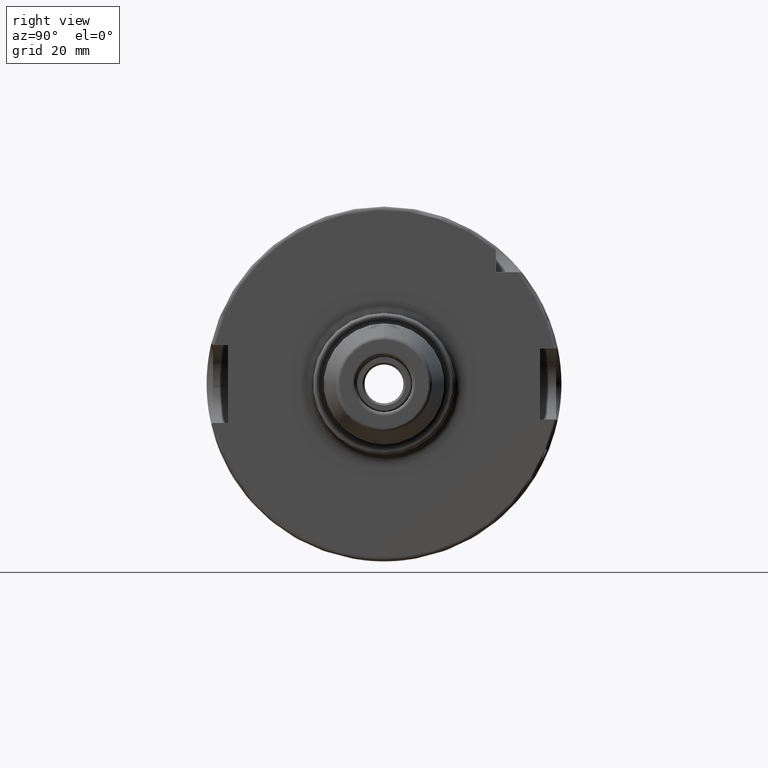
[diagram: clean part render]
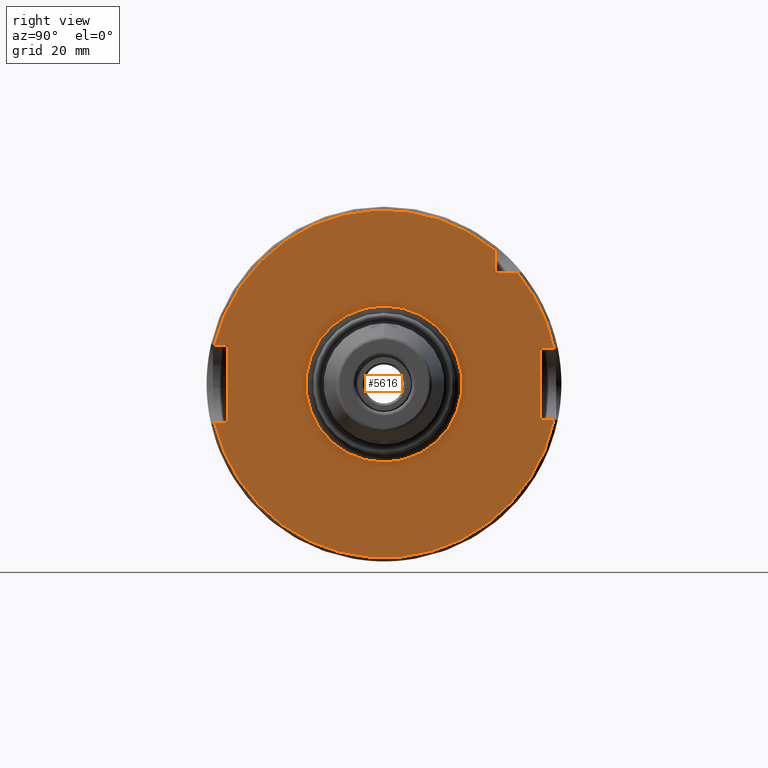
[diagram: same view with one face highlighted and labeled with its STEP entity id]
A machine part, right view. The second image highlights one B-rep face of the part: STEP entity #5616.
In plain terms, the highlighted planar face has unit normal (1, 0, 0).
Its self-contained STEP definition (entity closure, byte-faithful):
#1624=DIRECTION('',(0.E0,0.E0,1.E0));
#1625=VECTOR('',#1624,6.033318531672E0);
#1626=CARTESIAN_POINT('',(2.9E1,3.15E1,3.15E1));
#1627=LINE('',#1626,#1625);
#1749=DIRECTION('',(0.E0,1.E0,0.E0));
#1750=VECTOR('',#1749,3.968739820847E0);
#1751=CARTESIAN_POINT('',(2.9E1,4.4E1,1.E1));
#1752=LINE('',#1751,#1750);
#1927=DIRECTION('',(0.E0,0.E0,-1.E0));
#1928=VECTOR('',#1927,2.2E1);
#1929=CARTESIAN_POINT('',(2.9E1,-4.4E1,1.1E1));
#1930=LINE('',#1929,#1928);
#1944=CARTESIAN_POINT('',(2.9E1,0.E0,0.E0));
#1945=DIRECTION('',(-1.E0,0.E0,0.E0));
#1946=DIRECTION('',(0.E0,9.789538738948E-1,-2.040816326531E-1));
#1947=AXIS2_PLACEMENT_3D('',#1944,#1945,#1946);
#1949=DIRECTION('',(0.E0,-1.E0,0.E0));
#1950=VECTOR('',#1949,3.749345545252E0);
#1951=CARTESIAN_POINT('',(2.9E1,-4.4E1,1.1E1));
#1952=LINE('',#1951,#1950);
#1953=CARTESIAN_POINT('',(2.9E1,0.E0,0.E0));
#1954=DIRECTION('',(-1.E0,0.E0,0.E0));
#1955=DIRECTION('',(0.E0,-9.744764396990E-1,2.244897959184E-1));
#1956=AXIS2_PLACEMENT_3D('',#1953,#1954,#1955);
#1958=DIRECTION('',(0.E0,1.E0,0.E0));
#1959=VECTOR('',#1958,6.033318531672E0);
#1960=CARTESIAN_POINT('',(2.9E1,3.15E1,3.15E1));
#1961=LINE('',#1960,#1959);
#1962=CARTESIAN_POINT('',(2.9E1,0.E0,0.E0));
#1963=DIRECTION('',(-1.E0,0.E0,0.E0));
#1964=DIRECTION('',(0.E0,7.659860924831E-1,6.428571428571E-1));
#1965=AXIS2_PLACEMENT_3D('',#1962,#1963,#1964);
#1967=DIRECTION('',(0.E0,1.E0,0.E0));
#1968=VECTOR('',#1967,3.968739820847E0);
#1969=CARTESIAN_POINT('',(2.9E1,4.4E1,-1.E1));
#1970=LINE('',#1969,#1968);
#1971=CARTESIAN_POINT('',(2.9E1,0.E0,0.E0));
#1972=DIRECTION('',(1.E0,0.E0,0.E0));
#1973=DIRECTION('',(0.E0,0.E0,-1.E0));
#1974=AXIS2_PLACEMENT_3D('',#1971,#1972,#1973);
#1976=CARTESIAN_POINT('',(2.9E1,0.E0,0.E0));
#1977=DIRECTION('',(1.E0,0.E0,0.E0));
#1978=DIRECTION('',(0.E0,0.E0,1.E0));
#1979=AXIS2_PLACEMENT_3D('',#1976,#1977,#1978);
#2050=DIRECTION('',(0.E0,0.E0,1.E0));
#2051=VECTOR('',#2050,2.E1);
#2052=CARTESIAN_POINT('',(2.9E1,4.4E1,-1.E1));
#2053=LINE('',#2052,#2051);
#2090=CARTESIAN_POINT('',(2.9E1,-4.774934554525E1,-1.1E1));
#2109=DIRECTION('',(0.E0,-1.E0,0.E0));
#2110=VECTOR('',#2109,3.749345545252E0);
#2111=CARTESIAN_POINT('',(2.9E1,-4.4E1,-1.1E1));
#2112=LINE('',#2111,#2110);
#3327=VERTEX_POINT('',#2090);
#3328=CARTESIAN_POINT('',(2.9E1,4.796873982085E1,-1.E1));
#3329=VERTEX_POINT('',#3328);
#3371=CARTESIAN_POINT('',(2.9E1,4.4E1,-1.E1));
#3372=VERTEX_POINT('',#3371);
#3381=CARTESIAN_POINT('',(2.9E1,-4.4E1,-1.1E1));
#3382=VERTEX_POINT('',#3381);
#3383=CARTESIAN_POINT('',(2.9E1,-4.4E1,1.1E1));
#3384=VERTEX_POINT('',#3383);
#3385=CARTESIAN_POINT('',(2.9E1,-4.774934554525E1,1.1E1));
#3386=VERTEX_POINT('',#3385);
#3387=CARTESIAN_POINT('',(2.9E1,3.15E1,3.753331853167E1));
#3388=VERTEX_POINT('',#3387);
#3389=CARTESIAN_POINT('',(2.9E1,3.15E1,3.15E1));
#3390=VERTEX_POINT('',#3389);
#3391=CARTESIAN_POINT('',(2.9E1,3.753331853167E1,3.15E1));
#3392=VERTEX_POINT('',#3391);
#3393=CARTESIAN_POINT('',(2.9E1,4.796873982085E1,1.E1));
#3394=VERTEX_POINT('',#3393);
#3395=CARTESIAN_POINT('',(2.9E1,4.4E1,1.E1));
#3396=VERTEX_POINT('',#3395);
#3397=CARTESIAN_POINT('',(2.9E1,0.E0,-2.2E1));
#3398=CARTESIAN_POINT('',(2.9E1,0.E0,2.2E1));
#3399=VERTEX_POINT('',#3397);
#3400=VERTEX_POINT('',#3398);
#5588=CARTESIAN_POINT('',(2.9E1,0.E0,0.E0));
#5589=DIRECTION('',(1.E0,0.E0,0.E0));
#5590=DIRECTION('',(0.E0,0.E0,1.E0));
#5591=AXIS2_PLACEMENT_3D('',#5588,#5589,#5590);
#5592=PLANE('',#5591);
#5594=ORIENTED_EDGE('',*,*,#5593,.T.);
#5596=ORIENTED_EDGE('',*,*,#5595,.F.);
#5597=ORIENTED_EDGE('',*,*,#5577,.F.);
#5598=ORIENTED_EDGE('',*,*,#5108,.T.);
#5599=ORIENTED_EDGE('',*,*,#5140,.T.);
#5600=ORIENTED_EDGE('',*,*,#5233,.F.);
#5601=ORIENTED_EDGE('',*,*,#5287,.T.);
#5602=ORIENTED_EDGE('',*,*,#5318,.T.);
#5603=ORIENTED_EDGE('',*,*,#5389,.F.);
#5605=ORIENTED_EDGE('',*,*,#5604,.F.);
#5607=ORIENTED_EDGE('',*,*,#5606,.T.);
#5608=EDGE_LOOP('',(#5594,#5596,#5597,#5598,#5599,#5600,#5601,#5602,#5603,#5605,
#5607));
#5609=FACE_OUTER_BOUND('',#5608,.F.);
#5611=ORIENTED_EDGE('',*,*,#5610,.T.);
#5613=ORIENTED_EDGE('',*,*,#5612,.T.);
#5614=EDGE_LOOP('',(#5611,#5613));
#5615=FACE_BOUND('',#5614,.F.);
#5616=ADVANCED_FACE('',(#5609,#5615),#5592,.T.);
#1948=CIRCLE('',#1947,4.9E1);
#1957=CIRCLE('',#1956,4.9E1);
#1966=CIRCLE('',#1965,4.9E1);
#1975=CIRCLE('',#1974,2.2E1);
#1980=CIRCLE('',#1979,2.2E1);
#5108=EDGE_CURVE('',#3384,#3386,#1952,.T.);
#5140=EDGE_CURVE('',#3386,#3388,#1957,.T.);
#5233=EDGE_CURVE('',#3390,#3388,#1627,.T.);
#5287=EDGE_CURVE('',#3390,#3392,#1961,.T.);
#5318=EDGE_CURVE('',#3392,#3394,#1966,.T.);
#5389=EDGE_CURVE('',#3396,#3394,#1752,.T.);
#5577=EDGE_CURVE('',#3384,#3382,#1930,.T.);
#5593=EDGE_CURVE('',#3329,#3327,#1948,.T.);
#5595=EDGE_CURVE('',#3382,#3327,#2112,.T.);
#5604=EDGE_CURVE('',#3372,#3396,#2053,.T.);
#5606=EDGE_CURVE('',#3372,#3329,#1970,.T.);
#5610=EDGE_CURVE('',#3399,#3400,#1975,.T.);
#5612=EDGE_CURVE('',#3400,#3399,#1980,.T.);